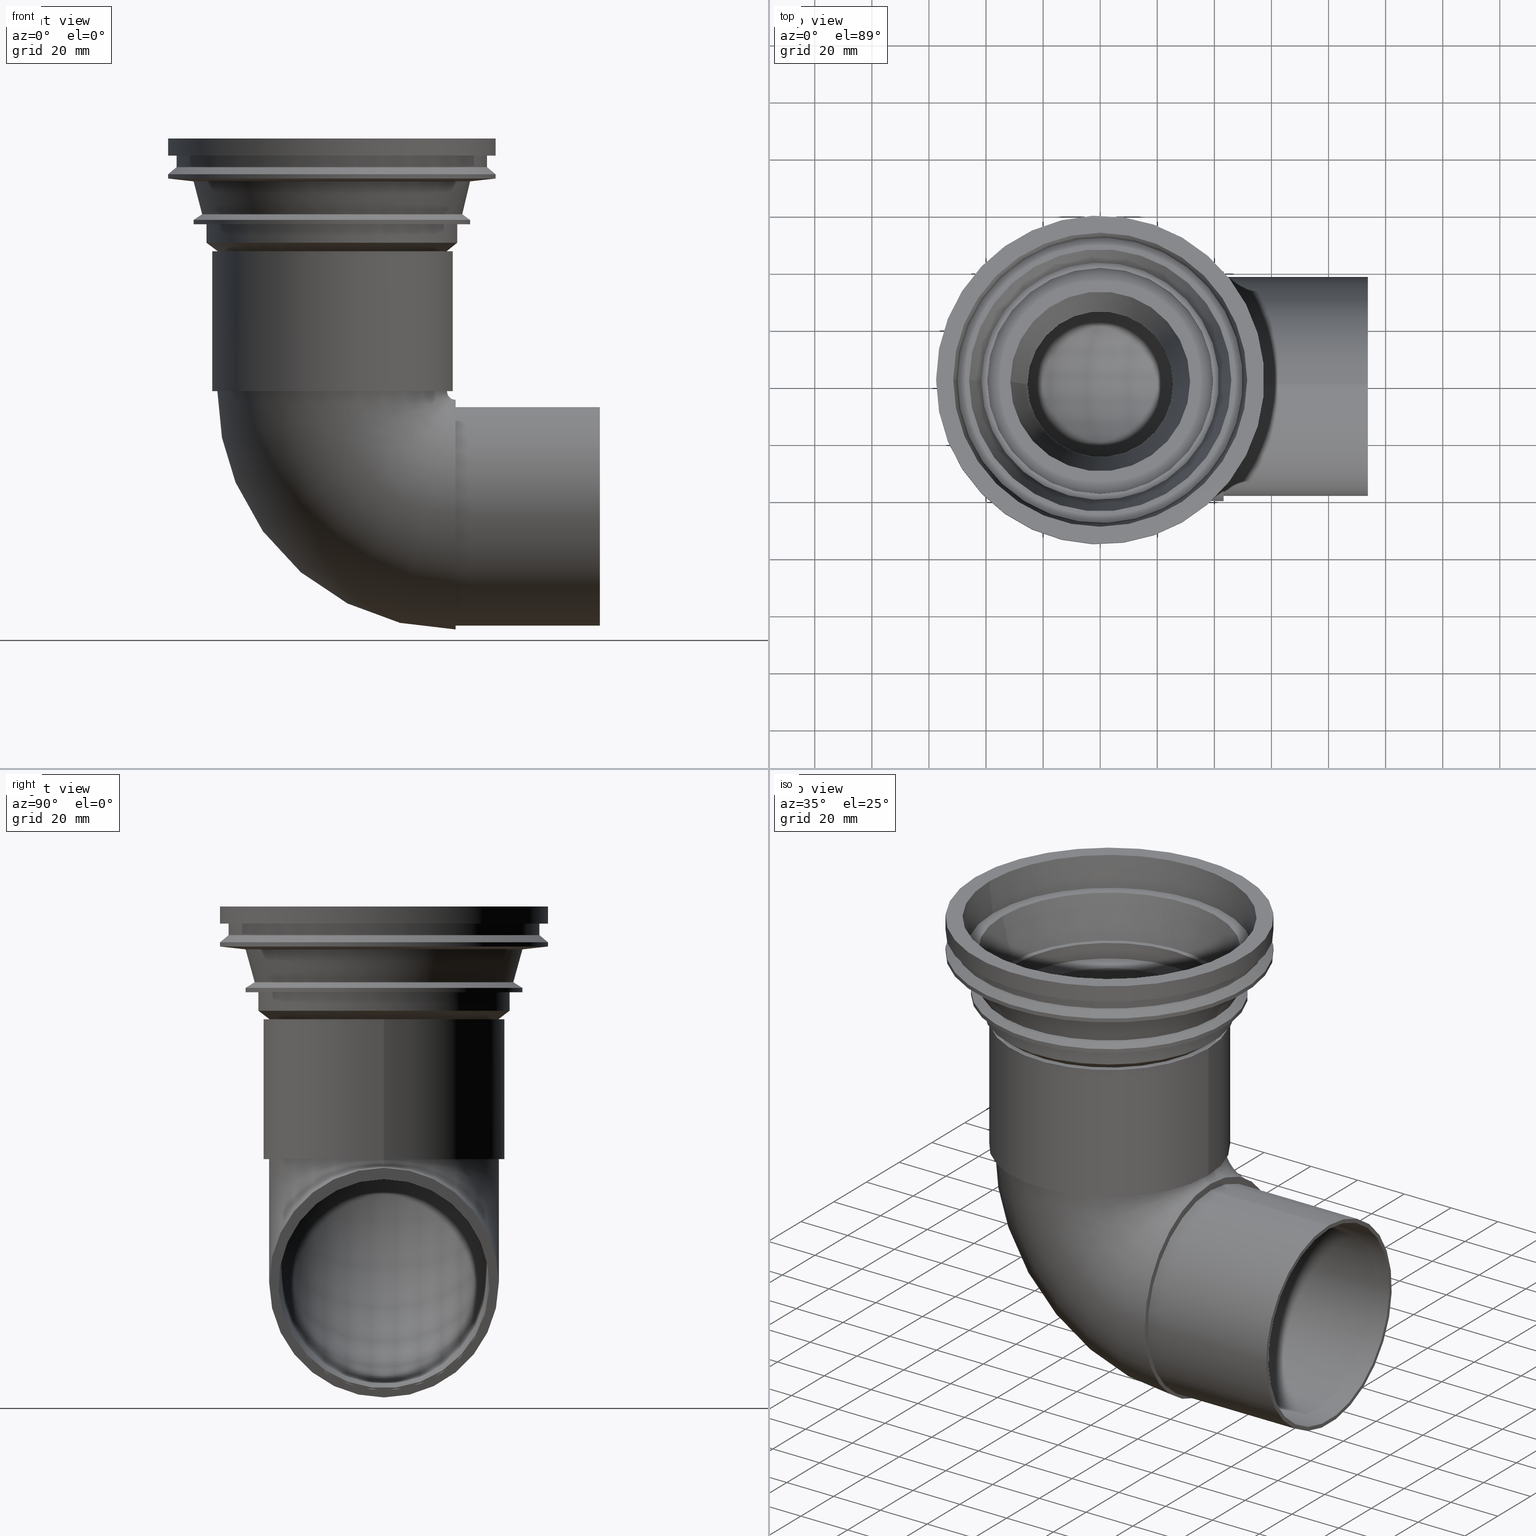
[diagram: canonical four-view strip — front | top / right | iso, engineering-drawing reading convention]
A machine part, canonical four-view strip (front | top / right | iso — engineering-drawing reading convention). The complete STEP part file that produces these views, byte-faithful:
ISO-10303-21;
HEADER;
/* Generated by software containing ST-Developer
 * from STEP Tools, Inc. (www.steptools.com) 
 */
/* OPTION: using custom renumber hook */

FILE_DESCRIPTION(
/* description */ ('STEP AP214'),
/* implementation_level */ '2;1');

FILE_NAME(
/* name */ '482079001(1)',
/* time_stamp */ '2022-12-23T08:19:39+01:00',
/* author */ ('License CC BY-ND 4.0'),
/* organization */ ('CADENAS'),
/* preprocessor_version */ 'ST-DEVELOPER v18.102',
/* originating_system */ 'PARTsolutions',
/* authorisation */ '  ');

FILE_SCHEMA (('AUTOMOTIVE_DESIGN {1 0 10303 214 3 1 1}'));
ENDSEC;

DATA;
#10=PROPERTY_DEFINITION_REPRESENTATION(#14,#12);
#11=PROPERTY_DEFINITION_REPRESENTATION(#15,#13);
#12=REPRESENTATION('',(#16),#779);
#13=REPRESENTATION('',(#17),#779);
#14=PROPERTY_DEFINITION('pmi validation property','',#784);
#15=PROPERTY_DEFINITION('pmi validation property','',#784);
#16=VALUE_REPRESENTATION_ITEM('number of annotations',COUNT_MEASURE(0.));
#17=VALUE_REPRESENTATION_ITEM('number of views',COUNT_MEASURE(0.));
#18=SHAPE_REPRESENTATION_RELATIONSHIP('','',#437,#19);
#19=ADVANCED_BREP_SHAPE_REPRESENTATION('',(#435),#779);
#20=TOROIDAL_SURFACE('',#501,43.25,36.975);
#21=TOROIDAL_SURFACE('',#503,43.25,40.225);
#22=CONICAL_SURFACE('',#452,51.5,0.124354994546762);
#23=CONICAL_SURFACE('',#456,45.942,0.258762537074751);
#24=CONICAL_SURFACE('',#464,31.499,0.10039079241774);
#25=CONICAL_SURFACE('',#468,28.478,0.100386889809357);
#26=CONICAL_SURFACE('',#469,40.056,0.927295218001611);
#27=CONICAL_SURFACE('',#478,48.556,0.982793723247329);
#28=CONICAL_SURFACE('',#480,45.556,0.255182390620819);
#29=CONICAL_SURFACE('',#482,48.556,1.45945195543957);
#30=CONICAL_SURFACE('',#486,57.5,0.876058050598194);
#31=CYLINDRICAL_SURFACE('',#448,57.5);
#32=CYLINDRICAL_SURFACE('',#460,39.582);
#33=CYLINDRICAL_SURFACE('',#472,44.056);
#34=CYLINDRICAL_SURFACE('',#476,48.556);
#35=CYLINDRICAL_SURFACE('',#484,57.5);
#36=CYLINDRICAL_SURFACE('',#488,54.5);
#37=CYLINDRICAL_SURFACE('',#489,36.975);
#38=CYLINDRICAL_SURFACE('',#494,40.);
#39=CYLINDRICAL_SURFACE('',#497,42.25);
#40=CYLINDRICAL_SURFACE('',#509,36.95);
#41=CYLINDRICAL_SURFACE('',#511,38.4);
#42=ORIENTED_EDGE('',*,*,#118,.T.);
#43=ORIENTED_EDGE('',*,*,#119,.T.);
#44=ORIENTED_EDGE('',*,*,#120,.F.);
#45=ORIENTED_EDGE('',*,*,#121,.F.);
#46=ORIENTED_EDGE('',*,*,#122,.T.);
#47=ORIENTED_EDGE('',*,*,#123,.F.);
#48=ORIENTED_EDGE('',*,*,#124,.T.);
#49=ORIENTED_EDGE('',*,*,#122,.F.);
#50=ORIENTED_EDGE('',*,*,#125,.T.);
#51=ORIENTED_EDGE('',*,*,#124,.F.);
#52=ORIENTED_EDGE('',*,*,#126,.T.);
#53=ORIENTED_EDGE('',*,*,#125,.F.);
#54=ORIENTED_EDGE('',*,*,#127,.T.);
#55=ORIENTED_EDGE('',*,*,#126,.F.);
#56=ORIENTED_EDGE('',*,*,#128,.T.);
#57=ORIENTED_EDGE('',*,*,#127,.F.);
#58=ORIENTED_EDGE('',*,*,#129,.T.);
#59=ORIENTED_EDGE('',*,*,#128,.F.);
#60=ORIENTED_EDGE('',*,*,#130,.T.);
#61=ORIENTED_EDGE('',*,*,#129,.F.);
#62=ORIENTED_EDGE('',*,*,#131,.T.);
#63=ORIENTED_EDGE('',*,*,#130,.F.);
#64=ORIENTED_EDGE('',*,*,#132,.T.);
#65=ORIENTED_EDGE('',*,*,#131,.F.);
#66=ORIENTED_EDGE('',*,*,#133,.T.);
#67=ORIENTED_EDGE('',*,*,#132,.F.);
#68=ORIENTED_EDGE('',*,*,#121,.T.);
#69=ORIENTED_EDGE('',*,*,#133,.F.);
#70=ORIENTED_EDGE('',*,*,#134,.T.);
#71=ORIENTED_EDGE('',*,*,#135,.F.);
#72=ORIENTED_EDGE('',*,*,#136,.T.);
#73=ORIENTED_EDGE('',*,*,#134,.F.);
#74=ORIENTED_EDGE('',*,*,#137,.T.);
#75=ORIENTED_EDGE('',*,*,#136,.F.);
#76=ORIENTED_EDGE('',*,*,#138,.T.);
#77=ORIENTED_EDGE('',*,*,#137,.F.);
#78=ORIENTED_EDGE('',*,*,#139,.T.);
#79=ORIENTED_EDGE('',*,*,#138,.F.);
#80=ORIENTED_EDGE('',*,*,#140,.T.);
#81=ORIENTED_EDGE('',*,*,#139,.F.);
#82=ORIENTED_EDGE('',*,*,#141,.T.);
#83=ORIENTED_EDGE('',*,*,#140,.F.);
#84=ORIENTED_EDGE('',*,*,#142,.T.);
#85=ORIENTED_EDGE('',*,*,#141,.F.);
#86=ORIENTED_EDGE('',*,*,#143,.T.);
#87=ORIENTED_EDGE('',*,*,#142,.F.);
#88=ORIENTED_EDGE('',*,*,#123,.T.);
#89=ORIENTED_EDGE('',*,*,#143,.F.);
#90=ORIENTED_EDGE('',*,*,#144,.T.);
#91=ORIENTED_EDGE('',*,*,#145,.F.);
#92=ORIENTED_EDGE('',*,*,#146,.T.);
#93=ORIENTED_EDGE('',*,*,#144,.F.);
#94=ORIENTED_EDGE('',*,*,#120,.T.);
#95=ORIENTED_EDGE('',*,*,#146,.F.);
#96=ORIENTED_EDGE('',*,*,#147,.T.);
#97=ORIENTED_EDGE('',*,*,#135,.T.);
#98=ORIENTED_EDGE('',*,*,#148,.T.);
#99=ORIENTED_EDGE('',*,*,#147,.F.);
#100=ORIENTED_EDGE('',*,*,#149,.T.);
#101=ORIENTED_EDGE('',*,*,#148,.F.);
#102=ORIENTED_EDGE('',*,*,#150,.F.);
#103=ORIENTED_EDGE('',*,*,#118,.F.);
#104=ORIENTED_EDGE('',*,*,#145,.T.);
#105=ORIENTED_EDGE('',*,*,#151,.T.);
#106=ORIENTED_EDGE('',*,*,#149,.F.);
#107=ORIENTED_EDGE('',*,*,#152,.T.);
#108=ORIENTED_EDGE('',*,*,#151,.F.);
#109=ORIENTED_EDGE('',*,*,#153,.F.);
#110=ORIENTED_EDGE('',*,*,#150,.T.);
#111=ORIENTED_EDGE('',*,*,#119,.F.);
#112=ORIENTED_EDGE('',*,*,#153,.T.);
#113=ORIENTED_EDGE('',*,*,#154,.F.);
#114=ORIENTED_EDGE('',*,*,#155,.T.);
#115=ORIENTED_EDGE('',*,*,#152,.F.);
#116=ORIENTED_EDGE('',*,*,#154,.T.);
#117=ORIENTED_EDGE('',*,*,#155,.F.);
#118=EDGE_CURVE('',#156,#157,#192,.T.);
#119=EDGE_CURVE('',#157,#156,#193,.F.);
#120=EDGE_CURVE('',#158,#158,#194,.T.);
#121=EDGE_CURVE('',#159,#159,#195,.T.);
#122=EDGE_CURVE('',#160,#160,#196,.T.);
#123=EDGE_CURVE('',#161,#161,#197,.T.);
#124=EDGE_CURVE('',#162,#162,#198,.T.);
#125=EDGE_CURVE('',#163,#163,#199,.T.);
#126=EDGE_CURVE('',#164,#164,#200,.T.);
#127=EDGE_CURVE('',#165,#165,#201,.T.);
#128=EDGE_CURVE('',#166,#166,#202,.T.);
#129=EDGE_CURVE('',#167,#167,#203,.T.);
#130=EDGE_CURVE('',#168,#168,#204,.T.);
#131=EDGE_CURVE('',#169,#169,#205,.T.);
#132=EDGE_CURVE('',#170,#170,#206,.T.);
#133=EDGE_CURVE('',#171,#171,#207,.T.);
#134=EDGE_CURVE('',#172,#172,#208,.T.);
#135=EDGE_CURVE('',#173,#173,#209,.T.);
#136=EDGE_CURVE('',#174,#174,#210,.T.);
#137=EDGE_CURVE('',#175,#175,#211,.T.);
#138=EDGE_CURVE('',#176,#176,#212,.T.);
#139=EDGE_CURVE('',#177,#177,#213,.T.);
#140=EDGE_CURVE('',#178,#178,#214,.T.);
#141=EDGE_CURVE('',#179,#179,#215,.T.);
#142=EDGE_CURVE('',#180,#180,#216,.T.);
#143=EDGE_CURVE('',#181,#181,#217,.T.);
#144=EDGE_CURVE('',#182,#182,#218,.T.);
#145=EDGE_CURVE('',#183,#183,#219,.T.);
#146=EDGE_CURVE('',#184,#184,#220,.T.);
#147=EDGE_CURVE('',#185,#185,#221,.T.);
#148=EDGE_CURVE('',#186,#186,#222,.T.);
#149=EDGE_CURVE('',#187,#187,#223,.T.);
#150=EDGE_CURVE('',#157,#156,#224,.T.);
#151=EDGE_CURVE('',#188,#188,#225,.T.);
#152=EDGE_CURVE('',#189,#189,#226,.T.);
#153=EDGE_CURVE('',#157,#156,#227,.T.);
#154=EDGE_CURVE('',#190,#190,#228,.T.);
#155=EDGE_CURVE('',#191,#191,#229,.T.);
#156=VERTEX_POINT('',#669);
#157=VERTEX_POINT('',#670);
#158=VERTEX_POINT('',#674);
#159=VERTEX_POINT('',#676);
#160=VERTEX_POINT('',#679);
#161=VERTEX_POINT('',#681);
#162=VERTEX_POINT('',#684);
#163=VERTEX_POINT('',#687);
#164=VERTEX_POINT('',#690);
#165=VERTEX_POINT('',#693);
#166=VERTEX_POINT('',#696);
#167=VERTEX_POINT('',#699);
#168=VERTEX_POINT('',#702);
#169=VERTEX_POINT('',#705);
#170=VERTEX_POINT('',#708);
#171=VERTEX_POINT('',#711);
#172=VERTEX_POINT('',#715);
#173=VERTEX_POINT('',#717);
#174=VERTEX_POINT('',#720);
#175=VERTEX_POINT('',#723);
#176=VERTEX_POINT('',#726);
#177=VERTEX_POINT('',#729);
#178=VERTEX_POINT('',#732);
#179=VERTEX_POINT('',#735);
#180=VERTEX_POINT('',#738);
#181=VERTEX_POINT('',#741);
#182=VERTEX_POINT('',#745);
#183=VERTEX_POINT('',#747);
#184=VERTEX_POINT('',#750);
#185=VERTEX_POINT('',#754);
#186=VERTEX_POINT('',#757);
#187=VERTEX_POINT('',#760);
#188=VERTEX_POINT('',#765);
#189=VERTEX_POINT('',#768);
#190=VERTEX_POINT('',#773);
#191=VERTEX_POINT('',#776);
#192=CIRCLE('',#440,36.975);
#193=CIRCLE('',#441,36.95);
#194=CIRCLE('',#443,40.);
#195=CIRCLE('',#444,33.99);
#196=CIRCLE('',#446,57.5);
#197=CIRCLE('',#447,54.5);
#198=CIRCLE('',#449,57.5);
#199=CIRCLE('',#451,51.5);
#200=CIRCLE('',#453,50.);
#201=CIRCLE('',#455,45.942);
#202=CIRCLE('',#457,41.588);
#203=CIRCLE('',#459,39.582);
#204=CIRCLE('',#461,39.582);
#205=CIRCLE('',#463,31.499);
#206=CIRCLE('',#465,25.478);
#207=CIRCLE('',#467,28.478);
#208=CIRCLE('',#470,44.056);
#209=CIRCLE('',#471,40.056);
#210=CIRCLE('',#473,44.056);
#211=CIRCLE('',#475,48.556);
#212=CIRCLE('',#477,48.556);
#213=CIRCLE('',#479,45.556);
#214=CIRCLE('',#481,48.556);
#215=CIRCLE('',#483,57.5);
#216=CIRCLE('',#485,57.5);
#217=CIRCLE('',#487,54.5);
#218=CIRCLE('',#490,36.975);
#219=CIRCLE('',#491,36.975);
#220=CIRCLE('',#493,40.);
#221=CIRCLE('',#496,42.25);
#222=CIRCLE('',#498,42.25);
#223=CIRCLE('',#500,40.225);
#224=CIRCLE('',#502,36.975);
#225=CIRCLE('',#504,40.225);
#226=CIRCLE('',#506,38.4);
#227=CIRCLE('',#508,36.95);
#228=CIRCLE('',#510,36.95);
#229=CIRCLE('',#512,38.4);
#230=EDGE_LOOP('',(#42,#43));
#231=EDGE_LOOP('',(#44));
#232=EDGE_LOOP('',(#45));
#233=EDGE_LOOP('',(#46));
#234=EDGE_LOOP('',(#47));
#235=EDGE_LOOP('',(#48));
#236=EDGE_LOOP('',(#49));
#237=EDGE_LOOP('',(#50));
#238=EDGE_LOOP('',(#51));
#239=EDGE_LOOP('',(#52));
#240=EDGE_LOOP('',(#53));
#241=EDGE_LOOP('',(#54));
#242=EDGE_LOOP('',(#55));
#243=EDGE_LOOP('',(#56));
#244=EDGE_LOOP('',(#57));
#245=EDGE_LOOP('',(#58));
#246=EDGE_LOOP('',(#59));
#247=EDGE_LOOP('',(#60));
#248=EDGE_LOOP('',(#61));
#249=EDGE_LOOP('',(#62));
#250=EDGE_LOOP('',(#63));
#251=EDGE_LOOP('',(#64));
#252=EDGE_LOOP('',(#65));
#253=EDGE_LOOP('',(#66));
#254=EDGE_LOOP('',(#67));
#255=EDGE_LOOP('',(#68));
#256=EDGE_LOOP('',(#69));
#257=EDGE_LOOP('',(#70));
#258=EDGE_LOOP('',(#71));
#259=EDGE_LOOP('',(#72));
#260=EDGE_LOOP('',(#73));
#261=EDGE_LOOP('',(#74));
#262=EDGE_LOOP('',(#75));
#263=EDGE_LOOP('',(#76));
#264=EDGE_LOOP('',(#77));
#265=EDGE_LOOP('',(#78));
#266=EDGE_LOOP('',(#79));
#267=EDGE_LOOP('',(#80));
#268=EDGE_LOOP('',(#81));
#269=EDGE_LOOP('',(#82));
#270=EDGE_LOOP('',(#83));
#271=EDGE_LOOP('',(#84));
#272=EDGE_LOOP('',(#85));
#273=EDGE_LOOP('',(#86));
#274=EDGE_LOOP('',(#87));
#275=EDGE_LOOP('',(#88));
#276=EDGE_LOOP('',(#89));
#277=EDGE_LOOP('',(#90));
#278=EDGE_LOOP('',(#91));
#279=EDGE_LOOP('',(#92));
#280=EDGE_LOOP('',(#93));
#281=EDGE_LOOP('',(#94));
#282=EDGE_LOOP('',(#95));
#283=EDGE_LOOP('',(#96));
#284=EDGE_LOOP('',(#97));
#285=EDGE_LOOP('',(#98));
#286=EDGE_LOOP('',(#99));
#287=EDGE_LOOP('',(#100));
#288=EDGE_LOOP('',(#101));
#289=EDGE_LOOP('',(#102,#103));
#290=EDGE_LOOP('',(#104));
#291=EDGE_LOOP('',(#105));
#292=EDGE_LOOP('',(#106));
#293=EDGE_LOOP('',(#107));
#294=EDGE_LOOP('',(#108));
#295=EDGE_LOOP('',(#109,#110));
#296=EDGE_LOOP('',(#111,#112));
#297=EDGE_LOOP('',(#113));
#298=EDGE_LOOP('',(#114));
#299=EDGE_LOOP('',(#115));
#300=EDGE_LOOP('',(#116));
#301=EDGE_LOOP('',(#117));
#302=FACE_BOUND('',#230,.T.);
#303=FACE_BOUND('',#231,.T.);
#304=FACE_BOUND('',#232,.T.);
#305=FACE_BOUND('',#233,.T.);
#306=FACE_BOUND('',#234,.T.);
#307=FACE_BOUND('',#235,.T.);
#308=FACE_BOUND('',#236,.T.);
#309=FACE_BOUND('',#237,.T.);
#310=FACE_BOUND('',#238,.T.);
#311=FACE_BOUND('',#239,.T.);
#312=FACE_BOUND('',#240,.T.);
#313=FACE_BOUND('',#241,.T.);
#314=FACE_BOUND('',#242,.T.);
#315=FACE_BOUND('',#243,.T.);
#316=FACE_BOUND('',#244,.T.);
#317=FACE_BOUND('',#245,.T.);
#318=FACE_BOUND('',#246,.T.);
#319=FACE_BOUND('',#247,.T.);
#320=FACE_BOUND('',#248,.T.);
#321=FACE_BOUND('',#249,.T.);
#322=FACE_BOUND('',#250,.T.);
#323=FACE_BOUND('',#251,.T.);
#324=FACE_BOUND('',#252,.T.);
#325=FACE_BOUND('',#253,.T.);
#326=FACE_BOUND('',#254,.T.);
#327=FACE_BOUND('',#255,.T.);
#328=FACE_BOUND('',#256,.T.);
#329=FACE_BOUND('',#257,.T.);
#330=FACE_BOUND('',#258,.T.);
#331=FACE_BOUND('',#259,.T.);
#332=FACE_BOUND('',#260,.T.);
#333=FACE_BOUND('',#261,.T.);
#334=FACE_BOUND('',#262,.T.);
#335=FACE_BOUND('',#263,.T.);
#336=FACE_BOUND('',#264,.T.);
#337=FACE_BOUND('',#265,.T.);
#338=FACE_BOUND('',#266,.T.);
#339=FACE_BOUND('',#267,.T.);
#340=FACE_BOUND('',#268,.T.);
#341=FACE_BOUND('',#269,.T.);
#342=FACE_BOUND('',#270,.T.);
#343=FACE_BOUND('',#271,.T.);
#344=FACE_BOUND('',#272,.T.);
#345=FACE_BOUND('',#273,.T.);
#346=FACE_BOUND('',#274,.T.);
#347=FACE_BOUND('',#275,.T.);
#348=FACE_BOUND('',#276,.T.);
#349=FACE_BOUND('',#277,.T.);
#350=FACE_BOUND('',#278,.T.);
#351=FACE_BOUND('',#279,.T.);
#352=FACE_BOUND('',#280,.T.);
#353=FACE_BOUND('',#281,.T.);
#354=FACE_BOUND('',#282,.T.);
#355=FACE_BOUND('',#283,.T.);
#356=FACE_BOUND('',#284,.T.);
#357=FACE_BOUND('',#285,.T.);
#358=FACE_BOUND('',#286,.T.);
#359=FACE_BOUND('',#287,.T.);
#360=FACE_BOUND('',#288,.T.);
#361=FACE_BOUND('',#289,.T.);
#362=FACE_BOUND('',#290,.T.);
#363=FACE_BOUND('',#291,.T.);
#364=FACE_BOUND('',#292,.T.);
#365=FACE_BOUND('',#293,.T.);
#366=FACE_BOUND('',#294,.T.);
#367=FACE_BOUND('',#295,.T.);
#368=FACE_BOUND('',#296,.T.);
#369=FACE_BOUND('',#297,.T.);
#370=FACE_BOUND('',#298,.T.);
#371=FACE_BOUND('',#299,.T.);
#372=FACE_BOUND('',#300,.T.);
#373=FACE_BOUND('',#301,.T.);
#374=PLANE('',#439);
#375=PLANE('',#442);
#376=PLANE('',#445);
#377=PLANE('',#450);
#378=PLANE('',#454);
#379=PLANE('',#458);
#380=PLANE('',#462);
#381=PLANE('',#466);
#382=PLANE('',#474);
#383=PLANE('',#492);
#384=PLANE('',#495);
#385=PLANE('',#499);
#386=PLANE('',#505);
#387=PLANE('',#507);
#388=PLANE('',#513);
#389=ADVANCED_FACE('',(#302),#374,.F.);
#390=ADVANCED_FACE('',(#303,#304),#375,.T.);
#391=ADVANCED_FACE('',(#305,#306),#376,.T.);
#392=ADVANCED_FACE('',(#307,#308),#31,.T.);
#393=ADVANCED_FACE('',(#309,#310),#377,.T.);
#394=ADVANCED_FACE('',(#311,#312),#22,.F.);
#395=ADVANCED_FACE('',(#313,#314),#378,.T.);
#396=ADVANCED_FACE('',(#315,#316),#23,.F.);
#397=ADVANCED_FACE('',(#317,#318),#379,.T.);
#398=ADVANCED_FACE('',(#319,#320),#32,.F.);
#399=ADVANCED_FACE('',(#321,#322),#380,.T.);
#400=ADVANCED_FACE('',(#323,#324),#24,.F.);
#401=ADVANCED_FACE('',(#325,#326),#381,.T.);
#402=ADVANCED_FACE('',(#327,#328),#25,.T.);
#403=ADVANCED_FACE('',(#329,#330),#26,.T.);
#404=ADVANCED_FACE('',(#331,#332),#33,.T.);
#405=ADVANCED_FACE('',(#333,#334),#382,.T.);
#406=ADVANCED_FACE('',(#335,#336),#34,.T.);
#407=ADVANCED_FACE('',(#337,#338),#27,.T.);
#408=ADVANCED_FACE('',(#339,#340),#28,.T.);
#409=ADVANCED_FACE('',(#341,#342),#29,.T.);
#410=ADVANCED_FACE('',(#343,#344),#35,.T.);
#411=ADVANCED_FACE('',(#345,#346),#30,.T.);
#412=ADVANCED_FACE('',(#347,#348),#36,.T.);
#413=ADVANCED_FACE('',(#349,#350),#37,.F.);
#414=ADVANCED_FACE('',(#351,#352),#383,.T.);
#415=ADVANCED_FACE('',(#353,#354),#38,.F.);
#416=ADVANCED_FACE('',(#355,#356),#384,.T.);
#417=ADVANCED_FACE('',(#357,#358),#39,.T.);
#418=ADVANCED_FACE('',(#359,#360),#385,.T.);
#419=ADVANCED_FACE('',(#361,#362),#20,.F.);
#420=ADVANCED_FACE('',(#363,#364),#21,.T.);
#421=ADVANCED_FACE('',(#365,#366),#386,.F.);
#422=ADVANCED_FACE('',(#367),#387,.T.);
#423=ADVANCED_FACE('',(#368,#369),#40,.F.);
#424=ADVANCED_FACE('',(#370,#371),#41,.T.);
#425=ADVANCED_FACE('',(#372,#373),#388,.T.);
#426=CLOSED_SHELL('',(#389,#390,#391,#392,#393,#394,#395,#396,#397,#398,
#399,#400,#401,#402,#403,#404,#405,#406,#407,#408,#409,#410,#411,#412,#413,
#414,#415,#416,#417,#418,#419,#420,#421,#422,#423,#424,#425));
#427=STYLED_ITEM('',(#428),#435);
#428=PRESENTATION_STYLE_ASSIGNMENT((#429));
#429=SURFACE_STYLE_USAGE(.BOTH.,#430);
#430=SURFACE_SIDE_STYLE('',(#431));
#431=SURFACE_STYLE_FILL_AREA(#432);
#432=FILL_AREA_STYLE('',(#433));
#433=FILL_AREA_STYLE_COLOUR('',#434);
#434=COLOUR_RGB('',0.689999997615814,0.689999997615814,0.689999997615814);
#435=MANIFOLD_SOLID_BREP('482079001(1)',#426);
#436=SHAPE_DEFINITION_REPRESENTATION(#784,#437);
#437=SHAPE_REPRESENTATION('482079001(1)',(#438),#779);
#438=AXIS2_PLACEMENT_3D('',#666,#514,#515);
#439=AXIS2_PLACEMENT_3D('',#667,#516,#517);
#440=AXIS2_PLACEMENT_3D('',#668,#518,#519);
#441=AXIS2_PLACEMENT_3D('',#671,#520,#521);
#442=AXIS2_PLACEMENT_3D('',#672,#522,#523);
#443=AXIS2_PLACEMENT_3D('',#673,#524,#525);
#444=AXIS2_PLACEMENT_3D('',#675,#526,#527);
#445=AXIS2_PLACEMENT_3D('',#677,#528,#529);
#446=AXIS2_PLACEMENT_3D('',#678,#530,#531);
#447=AXIS2_PLACEMENT_3D('',#680,#532,#533);
#448=AXIS2_PLACEMENT_3D('',#682,#534,#535);
#449=AXIS2_PLACEMENT_3D('',#683,#536,#537);
#450=AXIS2_PLACEMENT_3D('',#685,#538,#539);
#451=AXIS2_PLACEMENT_3D('',#686,#540,#541);
#452=AXIS2_PLACEMENT_3D('',#688,#542,#543);
#453=AXIS2_PLACEMENT_3D('',#689,#544,#545);
#454=AXIS2_PLACEMENT_3D('',#691,#546,#547);
#455=AXIS2_PLACEMENT_3D('',#692,#548,#549);
#456=AXIS2_PLACEMENT_3D('',#694,#550,#551);
#457=AXIS2_PLACEMENT_3D('',#695,#552,#553);
#458=AXIS2_PLACEMENT_3D('',#697,#554,#555);
#459=AXIS2_PLACEMENT_3D('',#698,#556,#557);
#460=AXIS2_PLACEMENT_3D('',#700,#558,#559);
#461=AXIS2_PLACEMENT_3D('',#701,#560,#561);
#462=AXIS2_PLACEMENT_3D('',#703,#562,#563);
#463=AXIS2_PLACEMENT_3D('',#704,#564,#565);
#464=AXIS2_PLACEMENT_3D('',#706,#566,#567);
#465=AXIS2_PLACEMENT_3D('',#707,#568,#569);
#466=AXIS2_PLACEMENT_3D('',#709,#570,#571);
#467=AXIS2_PLACEMENT_3D('',#710,#572,#573);
#468=AXIS2_PLACEMENT_3D('',#712,#574,#575);
#469=AXIS2_PLACEMENT_3D('',#713,#576,#577);
#470=AXIS2_PLACEMENT_3D('',#714,#578,#579);
#471=AXIS2_PLACEMENT_3D('',#716,#580,#581);
#472=AXIS2_PLACEMENT_3D('',#718,#582,#583);
#473=AXIS2_PLACEMENT_3D('',#719,#584,#585);
#474=AXIS2_PLACEMENT_3D('',#721,#586,#587);
#475=AXIS2_PLACEMENT_3D('',#722,#588,#589);
#476=AXIS2_PLACEMENT_3D('',#724,#590,#591);
#477=AXIS2_PLACEMENT_3D('',#725,#592,#593);
#478=AXIS2_PLACEMENT_3D('',#727,#594,#595);
#479=AXIS2_PLACEMENT_3D('',#728,#596,#597);
#480=AXIS2_PLACEMENT_3D('',#730,#598,#599);
#481=AXIS2_PLACEMENT_3D('',#731,#600,#601);
#482=AXIS2_PLACEMENT_3D('',#733,#602,#603);
#483=AXIS2_PLACEMENT_3D('',#734,#604,#605);
#484=AXIS2_PLACEMENT_3D('',#736,#606,#607);
#485=AXIS2_PLACEMENT_3D('',#737,#608,#609);
#486=AXIS2_PLACEMENT_3D('',#739,#610,#611);
#487=AXIS2_PLACEMENT_3D('',#740,#612,#613);
#488=AXIS2_PLACEMENT_3D('',#742,#614,#615);
#489=AXIS2_PLACEMENT_3D('',#743,#616,#617);
#490=AXIS2_PLACEMENT_3D('',#744,#618,#619);
#491=AXIS2_PLACEMENT_3D('',#746,#620,#621);
#492=AXIS2_PLACEMENT_3D('',#748,#622,#623);
#493=AXIS2_PLACEMENT_3D('',#749,#624,#625);
#494=AXIS2_PLACEMENT_3D('',#751,#626,#627);
#495=AXIS2_PLACEMENT_3D('',#752,#628,#629);
#496=AXIS2_PLACEMENT_3D('',#753,#630,#631);
#497=AXIS2_PLACEMENT_3D('',#755,#632,#633);
#498=AXIS2_PLACEMENT_3D('',#756,#634,#635);
#499=AXIS2_PLACEMENT_3D('',#758,#636,#637);
#500=AXIS2_PLACEMENT_3D('',#759,#638,#639);
#501=AXIS2_PLACEMENT_3D('',#761,#640,#641);
#502=AXIS2_PLACEMENT_3D('',#762,#642,#643);
#503=AXIS2_PLACEMENT_3D('',#763,#644,#645);
#504=AXIS2_PLACEMENT_3D('',#764,#646,#647);
#505=AXIS2_PLACEMENT_3D('',#766,#648,#649);
#506=AXIS2_PLACEMENT_3D('',#767,#650,#651);
#507=AXIS2_PLACEMENT_3D('',#769,#652,#653);
#508=AXIS2_PLACEMENT_3D('',#770,#654,#655);
#509=AXIS2_PLACEMENT_3D('',#771,#656,#657);
#510=AXIS2_PLACEMENT_3D('',#772,#658,#659);
#511=AXIS2_PLACEMENT_3D('',#774,#660,#661);
#512=AXIS2_PLACEMENT_3D('',#775,#662,#663);
#513=AXIS2_PLACEMENT_3D('',#777,#664,#665);
#514=DIRECTION('',(0.,0.,1.));
#515=DIRECTION('',(1.,0.,0.));
#516=DIRECTION('',(-1.,0.,6.12323399573677E-17));
#517=DIRECTION('',(6.12323399573677E-17,0.,1.));
#518=DIRECTION('',(-1.,0.,6.12323399573677E-17));
#519=DIRECTION('',(6.12323399573677E-17,0.,1.));
#520=DIRECTION('',(-1.,0.,6.12323399573677E-17));
#521=DIRECTION('',(6.12323399573677E-17,0.,1.));
#522=DIRECTION('',(0.,0.,-1.));
#523=DIRECTION('',(-1.,0.,0.));
#524=DIRECTION('',(0.,0.,1.));
#525=DIRECTION('',(1.,0.,0.));
#526=DIRECTION('',(0.,0.,-1.));
#527=DIRECTION('',(-1.,0.,0.));
#528=DIRECTION('',(0.,0.,-1.));
#529=DIRECTION('',(-1.,0.,0.));
#530=DIRECTION('',(0.,0.,-1.));
#531=DIRECTION('',(-1.,0.,0.));
#532=DIRECTION('',(0.,0.,-1.));
#533=DIRECTION('',(-1.,0.,0.));
#534=DIRECTION('',(0.,0.,-1.));
#535=DIRECTION('',(-1.,0.,0.));
#536=DIRECTION('',(0.,0.,-1.));
#537=DIRECTION('',(-1.,0.,0.));
#538=DIRECTION('',(0.,0.,1.));
#539=DIRECTION('',(1.,0.,0.));
#540=DIRECTION('',(0.,0.,-1.));
#541=DIRECTION('',(-1.,0.,0.));
#542=DIRECTION('',(0.,0.,1.));
#543=DIRECTION('',(1.,0.,0.));
#544=DIRECTION('',(0.,0.,-1.));
#545=DIRECTION('',(-1.,0.,0.));
#546=DIRECTION('',(0.,0.,1.));
#547=DIRECTION('',(1.,0.,0.));
#548=DIRECTION('',(0.,0.,-1.));
#549=DIRECTION('',(-1.,0.,0.));
#550=DIRECTION('',(0.,0.,1.));
#551=DIRECTION('',(1.,0.,0.));
#552=DIRECTION('',(0.,0.,-1.));
#553=DIRECTION('',(-1.,0.,0.));
#554=DIRECTION('',(0.,0.,1.));
#555=DIRECTION('',(1.,0.,0.));
#556=DIRECTION('',(0.,0.,-1.));
#557=DIRECTION('',(-1.,0.,0.));
#558=DIRECTION('',(0.,0.,-1.));
#559=DIRECTION('',(-1.,0.,0.));
#560=DIRECTION('',(0.,0.,-1.));
#561=DIRECTION('',(-1.,0.,0.));
#562=DIRECTION('',(0.,0.,1.));
#563=DIRECTION('',(1.,0.,0.));
#564=DIRECTION('',(0.,0.,-1.));
#565=DIRECTION('',(-1.,0.,0.));
#566=DIRECTION('',(0.,0.,1.));
#567=DIRECTION('',(1.,0.,0.));
#568=DIRECTION('',(0.,0.,-1.));
#569=DIRECTION('',(-1.,0.,0.));
#570=DIRECTION('',(0.,0.,-1.));
#571=DIRECTION('',(-1.,0.,0.));
#572=DIRECTION('',(0.,0.,-1.));
#573=DIRECTION('',(-1.,0.,0.));
#574=DIRECTION('',(0.,0.,1.));
#575=DIRECTION('',(1.,0.,0.));
#576=DIRECTION('',(0.,0.,1.));
#577=DIRECTION('',(1.,0.,0.));
#578=DIRECTION('',(0.,0.,-1.));
#579=DIRECTION('',(-1.,0.,0.));
#580=DIRECTION('',(0.,0.,-1.));
#581=DIRECTION('',(-1.,0.,0.));
#582=DIRECTION('',(0.,0.,-1.));
#583=DIRECTION('',(-1.,0.,0.));
#584=DIRECTION('',(0.,0.,-1.));
#585=DIRECTION('',(-1.,0.,0.));
#586=DIRECTION('',(0.,0.,-1.));
#587=DIRECTION('',(-1.,0.,0.));
#588=DIRECTION('',(0.,0.,-1.));
#589=DIRECTION('',(-1.,0.,0.));
#590=DIRECTION('',(0.,0.,-1.));
#591=DIRECTION('',(-1.,0.,0.));
#592=DIRECTION('',(0.,0.,-1.));
#593=DIRECTION('',(-1.,0.,0.));
#594=DIRECTION('',(0.,0.,-1.));
#595=DIRECTION('',(-1.,0.,0.));
#596=DIRECTION('',(0.,0.,-1.));
#597=DIRECTION('',(-1.,0.,0.));
#598=DIRECTION('',(0.,0.,1.));
#599=DIRECTION('',(1.,0.,0.));
#600=DIRECTION('',(0.,0.,-1.));
#601=DIRECTION('',(-1.,0.,0.));
#602=DIRECTION('',(0.,0.,1.));
#603=DIRECTION('',(1.,0.,0.));
#604=DIRECTION('',(0.,0.,-1.));
#605=DIRECTION('',(-1.,0.,0.));
#606=DIRECTION('',(0.,0.,-1.));
#607=DIRECTION('',(-1.,0.,0.));
#608=DIRECTION('',(0.,0.,-1.));
#609=DIRECTION('',(-1.,0.,0.));
#610=DIRECTION('',(0.,0.,-1.));
#611=DIRECTION('',(-1.,0.,0.));
#612=DIRECTION('',(0.,0.,-1.));
#613=DIRECTION('',(-1.,0.,0.));
#614=DIRECTION('',(0.,0.,-1.));
#615=DIRECTION('',(-1.,0.,0.));
#616=DIRECTION('',(0.,0.,1.));
#617=DIRECTION('',(1.,0.,0.));
#618=DIRECTION('',(0.,0.,1.));
#619=DIRECTION('',(1.,0.,0.));
#620=DIRECTION('',(0.,0.,1.));
#621=DIRECTION('',(1.,0.,0.));
#622=DIRECTION('',(0.,0.,1.));
#623=DIRECTION('',(1.,0.,0.));
#624=DIRECTION('',(0.,0.,1.));
#625=DIRECTION('',(1.,0.,0.));
#626=DIRECTION('',(0.,0.,1.));
#627=DIRECTION('',(1.,0.,0.));
#628=DIRECTION('',(0.,0.,1.));
#629=DIRECTION('',(1.,0.,0.));
#630=DIRECTION('',(0.,0.,1.));
#631=DIRECTION('',(1.,0.,0.));
#632=DIRECTION('',(0.,0.,1.));
#633=DIRECTION('',(1.,0.,0.));
#634=DIRECTION('',(0.,0.,1.));
#635=DIRECTION('',(1.,0.,0.));
#636=DIRECTION('',(0.,0.,-1.));
#637=DIRECTION('',(-1.,0.,0.));
#638=DIRECTION('',(0.,0.,1.));
#639=DIRECTION('',(1.,0.,0.));
#640=DIRECTION('',(0.,1.,0.));
#641=DIRECTION('',(0.,0.,1.));
#642=DIRECTION('',(-1.,0.,6.12323399573677E-17));
#643=DIRECTION('',(6.12323399573677E-17,0.,1.));
#644=DIRECTION('',(0.,1.,0.));
#645=DIRECTION('',(0.,0.,1.));
#646=DIRECTION('',(-1.,0.,6.12323399573677E-17));
#647=DIRECTION('',(6.12323399573677E-17,0.,1.));
#648=DIRECTION('',(-1.,0.,6.12323399573677E-17));
#649=DIRECTION('',(6.12323399573677E-17,0.,1.));
#650=DIRECTION('',(-1.,0.,0.));
#651=DIRECTION('',(0.,0.,1.));
#652=DIRECTION('',(-1.,0.,0.));
#653=DIRECTION('',(0.,0.,1.));
#654=DIRECTION('',(-1.,0.,0.));
#655=DIRECTION('',(0.,0.,1.));
#656=DIRECTION('',(-1.,0.,0.));
#657=DIRECTION('',(0.,0.,1.));
#658=DIRECTION('',(-1.,0.,0.));
#659=DIRECTION('',(0.,0.,1.));
#660=DIRECTION('',(-1.,0.,0.));
#661=DIRECTION('',(0.,0.,1.));
#662=DIRECTION('',(-1.,0.,0.));
#663=DIRECTION('',(0.,0.,1.));
#664=DIRECTION('',(1.,0.,0.));
#665=DIRECTION('',(0.,0.,-1.));
#666=CARTESIAN_POINT('',(0.,0.,0.));
#667=CARTESIAN_POINT('',(43.25,0.,-131.75));
#668=CARTESIAN_POINT('',(43.25,0.,-131.75));
#669=CARTESIAN_POINT('',(43.25,36.9392330960458,-133.375940735695));
#670=CARTESIAN_POINT('',(43.25,-36.9392330960458,-133.375940735695));
#671=CARTESIAN_POINT('',(43.25,0.,-132.484));
#672=CARTESIAN_POINT('',(-33.99,0.,-39.5));
#673=CARTESIAN_POINT('',(0.,0.,-39.5));
#674=CARTESIAN_POINT('',(40.,0.,-39.5));
#675=CARTESIAN_POINT('',(0.,0.,-39.5));
#676=CARTESIAN_POINT('',(-33.99,0.,-39.5));
#677=CARTESIAN_POINT('',(-54.5,0.,-6.));
#678=CARTESIAN_POINT('',(0.,0.,-6.));
#679=CARTESIAN_POINT('',(-57.5,0.,-6.));
#680=CARTESIAN_POINT('',(0.,0.,-6.));
#681=CARTESIAN_POINT('',(-54.5,0.,-6.));
#682=CARTESIAN_POINT('',(0.,0.,-5.));
#683=CARTESIAN_POINT('',(0.,0.,0.));
#684=CARTESIAN_POINT('',(-57.5,0.,0.));
#685=CARTESIAN_POINT('',(-57.5,0.,0.));
#686=CARTESIAN_POINT('',(0.,0.,0.));
#687=CARTESIAN_POINT('',(-51.5,0.,0.));
#688=CARTESIAN_POINT('',(0.,0.,0.));
#689=CARTESIAN_POINT('',(0.,0.,-12.));
#690=CARTESIAN_POINT('',(-50.,0.,-12.));
#691=CARTESIAN_POINT('',(-50.,0.,-12.));
#692=CARTESIAN_POINT('',(0.,0.,-12.));
#693=CARTESIAN_POINT('',(-45.942,0.,-12.));
#694=CARTESIAN_POINT('',(0.,0.,-12.));
#695=CARTESIAN_POINT('',(0.,0.,-28.449));
#696=CARTESIAN_POINT('',(-41.588,0.,-28.449));
#697=CARTESIAN_POINT('',(-41.588,0.,-28.449));
#698=CARTESIAN_POINT('',(0.,0.,-28.449));
#699=CARTESIAN_POINT('',(-39.582,0.,-28.449));
#700=CARTESIAN_POINT('',(0.,0.,-5.));
#701=CARTESIAN_POINT('',(0.,0.,-34.449));
#702=CARTESIAN_POINT('',(-39.582,0.,-34.449));
#703=CARTESIAN_POINT('',(-39.582,0.,-34.449));
#704=CARTESIAN_POINT('',(0.,0.,-34.449));
#705=CARTESIAN_POINT('',(-31.499,0.,-34.449));
#706=CARTESIAN_POINT('',(0.,0.,-34.449));
#707=CARTESIAN_POINT('',(0.,0.,-94.223));
#708=CARTESIAN_POINT('',(-25.478,0.,-94.223));
#709=CARTESIAN_POINT('',(-25.478,0.,-94.223));
#710=CARTESIAN_POINT('',(0.,0.,-94.223));
#711=CARTESIAN_POINT('',(-28.478,0.,-94.223));
#712=CARTESIAN_POINT('',(0.,0.,-94.223));
#713=CARTESIAN_POINT('',(0.,0.,-39.5));
#714=CARTESIAN_POINT('',(0.,0.,-36.5));
#715=CARTESIAN_POINT('',(-44.056,0.,-36.5));
#716=CARTESIAN_POINT('',(0.,0.,-39.5));
#717=CARTESIAN_POINT('',(-40.056,0.,-39.5));
#718=CARTESIAN_POINT('',(0.,0.,-5.));
#719=CARTESIAN_POINT('',(0.,0.,-30.));
#720=CARTESIAN_POINT('',(-44.056,0.,-30.));
#721=CARTESIAN_POINT('',(-44.056,0.,-30.));
#722=CARTESIAN_POINT('',(0.,0.,-30.));
#723=CARTESIAN_POINT('',(-48.556,0.,-30.));
#724=CARTESIAN_POINT('',(0.,0.,-5.));
#725=CARTESIAN_POINT('',(0.,0.,-28.5));
#726=CARTESIAN_POINT('',(-48.556,0.,-28.5));
#727=CARTESIAN_POINT('',(0.,0.,-28.5));
#728=CARTESIAN_POINT('',(0.,0.,-26.5));
#729=CARTESIAN_POINT('',(-45.556,0.,-26.5));
#730=CARTESIAN_POINT('',(0.,0.,-26.5));
#731=CARTESIAN_POINT('',(0.,0.,-15.));
#732=CARTESIAN_POINT('',(-48.556,0.,-15.));
#733=CARTESIAN_POINT('',(0.,0.,-15.));
#734=CARTESIAN_POINT('',(0.,0.,-14.));
#735=CARTESIAN_POINT('',(-57.5,0.,-14.));
#736=CARTESIAN_POINT('',(0.,0.,-5.));
#737=CARTESIAN_POINT('',(0.,0.,-12.5));
#738=CARTESIAN_POINT('',(-57.5,0.,-12.5));
#739=CARTESIAN_POINT('',(0.,0.,-12.5));
#740=CARTESIAN_POINT('',(0.,0.,-10.));
#741=CARTESIAN_POINT('',(-54.5,0.,-10.));
#742=CARTESIAN_POINT('',(0.,0.,-5.));
#743=CARTESIAN_POINT('',(0.,0.,-39.5));
#744=CARTESIAN_POINT('',(0.,0.,-87.1));
#745=CARTESIAN_POINT('',(36.975,0.,-87.1));
#746=CARTESIAN_POINT('',(0.,0.,-88.5));
#747=CARTESIAN_POINT('',(36.975,0.,-88.5));
#748=CARTESIAN_POINT('',(36.975,0.,-87.1));
#749=CARTESIAN_POINT('',(0.,0.,-87.1));
#750=CARTESIAN_POINT('',(40.,0.,-87.1));
#751=CARTESIAN_POINT('',(0.,0.,-39.5));
#752=CARTESIAN_POINT('',(40.,0.,-39.5));
#753=CARTESIAN_POINT('',(0.,0.,-39.5));
#754=CARTESIAN_POINT('',(42.25,0.,-39.5));
#755=CARTESIAN_POINT('',(0.,0.,-39.5));
#756=CARTESIAN_POINT('',(0.,0.,-88.5));
#757=CARTESIAN_POINT('',(42.25,0.,-88.5));
#758=CARTESIAN_POINT('',(42.25,0.,-88.5));
#759=CARTESIAN_POINT('',(0.,0.,-88.5));
#760=CARTESIAN_POINT('',(40.225,0.,-88.5));
#761=CARTESIAN_POINT('',(43.25,0.,-88.5));
#762=CARTESIAN_POINT('',(43.25,0.,-131.75));
#763=CARTESIAN_POINT('',(43.25,0.,-88.5));
#764=CARTESIAN_POINT('',(43.25,0.,-131.75));
#765=CARTESIAN_POINT('',(43.25,0.,-91.525));
#766=CARTESIAN_POINT('',(43.25,0.,-131.75));
#767=CARTESIAN_POINT('',(43.25,0.,-132.484));
#768=CARTESIAN_POINT('',(43.25,0.,-94.084));
#769=CARTESIAN_POINT('',(43.25,0.,-95.534));
#770=CARTESIAN_POINT('',(43.25,0.,-132.484));
#771=CARTESIAN_POINT('',(43.25,0.,-132.484));
#772=CARTESIAN_POINT('',(93.8,0.,-132.484));
#773=CARTESIAN_POINT('',(93.8,0.,-95.534));
#774=CARTESIAN_POINT('',(43.25,0.,-132.484));
#775=CARTESIAN_POINT('',(93.8,0.,-132.484));
#776=CARTESIAN_POINT('',(93.8,0.,-94.084));
#777=CARTESIAN_POINT('',(93.8,0.,-94.084));
#778=MECHANICAL_DESIGN_GEOMETRIC_PRESENTATION_REPRESENTATION('',(#427),
#779);
#779=(
GEOMETRIC_REPRESENTATION_CONTEXT(3)
GLOBAL_UNCERTAINTY_ASSIGNED_CONTEXT((#780))
GLOBAL_UNIT_ASSIGNED_CONTEXT((#783,#782,#781))
REPRESENTATION_CONTEXT('482079001(1)','TOP_LEVEL_ASSEMBLY_PART')
);
#780=UNCERTAINTY_MEASURE_WITH_UNIT(LENGTH_MEASURE(0.005),#783,
'DISTANCE_ACCURACY_VALUE','Maximum Tolerance applied to model');
#781=(
NAMED_UNIT(*)
SI_UNIT($,.STERADIAN.)
SOLID_ANGLE_UNIT()
);
#782=(
NAMED_UNIT(*)
PLANE_ANGLE_UNIT()
SI_UNIT($,.RADIAN.)
);
#783=(
LENGTH_UNIT()
NAMED_UNIT(*)
SI_UNIT(.MILLI.,.METRE.)
);
#784=PRODUCT_DEFINITION_SHAPE('','',#785);
#785=PRODUCT_DEFINITION('','',#787,#786);
#786=PRODUCT_DEFINITION_CONTEXT('',#793,'design');
#787=PRODUCT_DEFINITION_FORMATION_WITH_SPECIFIED_SOURCE('','',#789,
 .NOT_KNOWN.);
#788=PRODUCT_RELATED_PRODUCT_CATEGORY('','',(#789));
#789=PRODUCT('482079001(1)','482079001(1)','482079001(1)',(#791));
#790=PRODUCT_CATEGORY('','');
#791=PRODUCT_CONTEXT('',#793,'mechanical');
#792=APPLICATION_PROTOCOL_DEFINITION('international standard',
'automotive_design',2010,#793);
#793=APPLICATION_CONTEXT(
'core data for automotive mechanical design processes');
ENDSEC;
END-ISO-10303-21;
